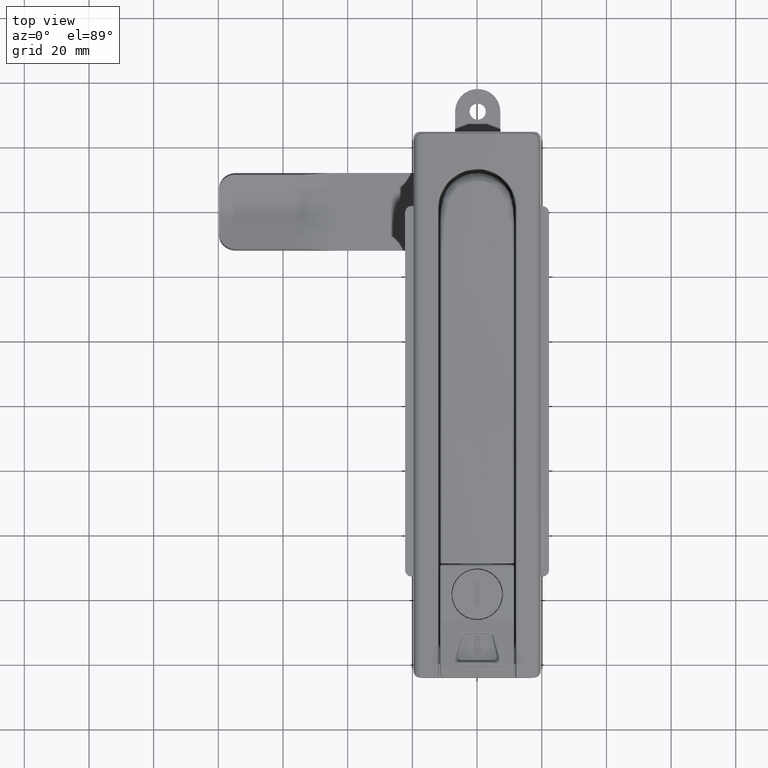
[diagram: clean part render]
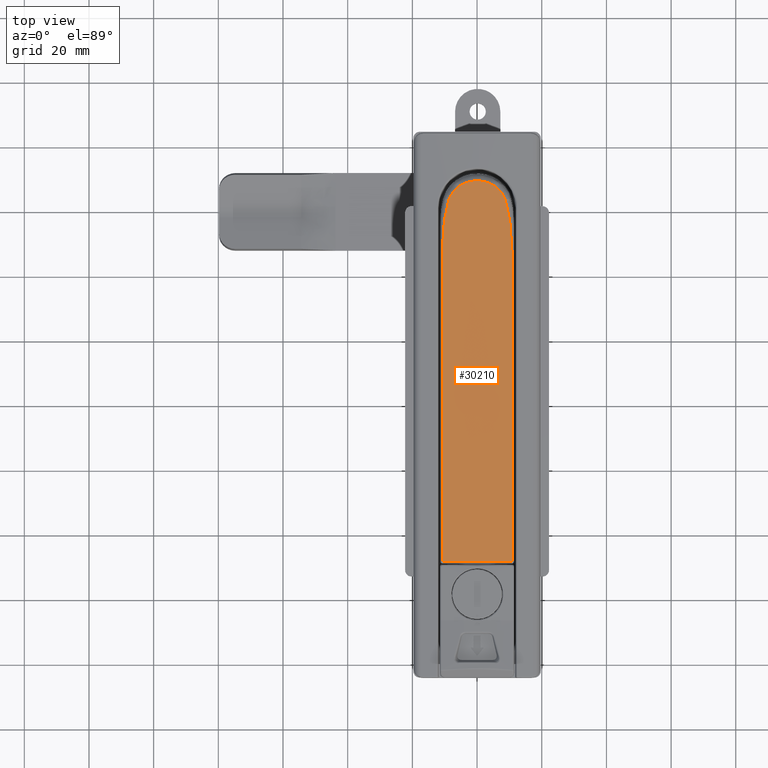
[diagram: same view with one face highlighted and labeled with its STEP entity id]
A machine part, top view. The second image highlights one B-rep face of the part: STEP entity #30210.
In plain terms, the highlighted cylindrical surface (partial cylindrical patch) has radius 135 mm, axis along (-0, -1, 0).
Its self-contained STEP definition (entity closure, byte-faithful):
#2460=B_SPLINE_CURVE_WITH_KNOTS('',3,(#70364,#70365,#70366,#70367,#70368,
#70369,#70370,#70371,#70372,#70373,#70374,#70375,#70376,#70377,#70378,#70379,
#70380,#70381,#70382,#70383,#70384,#70385,#70386,#70387,#70388,#70389,#70390,
#70391,#70392,#70393,#70394,#70395,#70396,#70397,#70398,#70399,#70400,#70401,
#70402,#70403,#70404,#70405,#70406,#70407,#70408,#70409),.UNSPECIFIED.,
 .F.,.F.,(4,2,2,2,2,2,2,2,2,2,2,2,2,2,2,2,2,2,2,2,2,2,4),(0.,0.0794670477758128,
0.124337506997878,0.208967356926244,0.24967738575409,0.33365015805204,0.41682507902602,
0.5,0.554073733065576,0.607621381841759,0.660948832097142,0.714084661877617,
0.742899010685793,0.795658524140719,0.848496563656226,0.866933520496024,
0.899057900391231,0.915918679704495,0.931844284371677,0.943788937098933,
0.948528858773422,0.965434167929157,1.),.UNSPECIFIED.);
#2461=B_SPLINE_CURVE_WITH_KNOTS('',3,(#70411,#70412,#70413,#70414,#70415,
#70416,#70417,#70418,#70419,#70420,#70421,#70422,#70423,#70424,#70425,#70426,
#70427,#70428,#70429,#70430,#70431,#70432,#70433,#70434,#70435,#70436,#70437,
#70438,#70439,#70440,#70441,#70442,#70443,#70444,#70445,#70446,#70447,#70448,
#70449,#70450,#70451,#70452,#70453,#70454,#70455,#70456),.UNSPECIFIED.,
 .F.,.F.,(4,2,2,2,2,2,2,2,2,2,2,2,2,2,2,2,2,2,2,2,2,2,4),(0.,0.0288698119042643,
0.0595070484275719,0.0615314774198271,0.10838350489305,0.123901449784414,
0.214601047893554,0.25008490282086,0.3354521621072,0.4177260810536,0.5,
0.552821544612208,0.604787974550976,0.655868264949775,0.704869810681246,
0.75,0.806741974749445,0.809732580552726,0.851301665456547,0.870906002412791,
0.917474773523618,0.962610068843219,0.999999999999997),.UNSPECIFIED.);
#2462=B_SPLINE_CURVE_WITH_KNOTS('',3,(#70458,#70459,#70460,#70461,#70462,
#70463,#70464,#70465,#70466,#70467,#70468,#70469,#70470,#70471,#70472,#70473,
#70474,#70475,#70476,#70477,#70478,#70479,#70480,#70481,#70482,#70483,#70484,
#70485,#70486,#70487,#70488,#70489,#70490,#70491,#70492,#70493,#70494,#70495,
#70496,#70497,#70498,#70499,#70500,#70501,#70502,#70503,#70504,#70505,#70506,
#70507,#70508,#70509,#70510,#70511,#70512,#70513,#70514,#70515,#70516,#70517,
#70518,#70519,#70520,#70521,#70522,#70523,#70524,#70525,#70526,#70527,#70528,
#70529,#70530,#70531),.UNSPECIFIED.,.F.,.F.,(4,2,2,2,2,2,2,2,2,2,2,2,2,
2,2,2,2,2,2,2,2,2,2,2,2,2,2,2,2,2,2,2,2,2,2,2,4),(0.,0.00263571209066794,
0.00543301713932995,0.00615894069718594,0.00858458813709172,0.0111539515478186,
0.013141776808428,0.0156249999999999,0.0208699680766893,0.0234374999999998,
0.0292968749999997,0.0305423379409803,0.0312499999999996,0.0380874327237521,
0.0452204865772513,0.0468749999999993,0.0545105366817038,0.0585937499999991,
0.0603142663355956,0.0619198009169783,0.0624999999999991,0.0708090472847054,
0.078124999999999,0.0859374999999989,0.0883873902625466,0.0908226008862248,
0.0933661572808643,0.0937499999999989,0.0957031249999989,0.0977089364757748,
0.0999986284931972,0.101562499999999,0.109374999999999,0.124999999999999,
0.249999999999999,0.499999999999999,1.),.UNSPECIFIED.);
#2463=B_SPLINE_CURVE_WITH_KNOTS('',3,(#70535,#70536,#70537,#70538,#70539,
#70540,#70541,#70542,#70543,#70544,#70545,#70546,#70547,#70548,#70549,#70550,
#70551,#70552,#70553,#70554,#70555,#70556,#70557,#70558,#70559,#70560,#70561,
#70562,#70563,#70564,#70565,#70566,#70567,#70568,#70569,#70570,#70571,#70572,
#70573,#70574,#70575,#70576,#70577,#70578,#70579,#70580,#70581,#70582,#70583,
#70584,#70585,#70586,#70587,#70588,#70589,#70590),.UNSPECIFIED.,.F.,.F.,
(4,2,2,2,2,2,2,2,2,2,2,2,2,2,2,2,2,2,2,2,2,2,2,2,2,2,2,4),(0.,0.890625000000001,
0.898292881535682,0.901749179759901,0.904813415789581,0.906250000000001,
0.914989498762561,0.921875000000001,0.930204271891951,0.933593750000001,
0.93515670162165,0.936832589379554,0.937500000000001,0.945312500000001,
0.953125000000001,0.960142785525103,0.966796875000001,0.967880200079096,
0.968750000000001,0.973991755500175,0.978828365200004,0.983194383446679,
0.98717515098635,0.990381363239762,0.993388397441938,0.996303188199453,
0.999100911591475,1.),.UNSPECIFIED.);
#2464=B_SPLINE_CURVE_WITH_KNOTS('',3,(#70592,#70593,#70594,#70595,#70596,
#70597,#70598,#70599,#70600,#70601,#70602,#70603,#70604,#70605,#70606,#70607,
#70608,#70609,#70610,#70611,#70612,#70613,#70614,#70615,#70616,#70617,#70618,
#70619,#70620,#70621,#70622),.UNSPECIFIED.,.F.,.F.,(4,3,3,3,3,3,3,3,3,3,
4),(0.,0.107734700056607,0.141528715173318,0.278271703776808,0.537223825986683,
0.777351176680833,0.890759079428263,0.945887036460988,0.973068700845226,
0.989059877348723,1.),.UNSPECIFIED.);
#2465=B_SPLINE_CURVE_WITH_KNOTS('',3,(#70624,#70625,#70626,#70627,#70628,
#70629,#70630,#70631,#70632,#70633,#70634,#70635,#70636,#70637,#70638,#70639,
#70640,#70641,#70642,#70643,#70644,#70645,#70646,#70647,#70648,#70649,#70650,
#70651,#70652,#70653,#70654,#70655,#70656,#70657,#70658,#70659,#70660,#70661,
#70662,#70663),.UNSPECIFIED.,.F.,.F.,(4,2,2,2,2,2,2,2,2,2,2,2,2,2,2,2,2,
2,2,4),(0.,0.0151711104225679,0.0305293993237928,0.0343198211761847,0.061678326381175,
0.0677014490277877,0.104184156489245,0.13229401847233,0.185456548794355,
0.238318991460715,0.256041604113548,0.308708479922393,0.361651681672873,
0.414825019774472,0.468505785224694,0.5,0.660754413349573,0.750450489933526,
0.921630445433986,0.99999999999998),.UNSPECIFIED.);
#2466=B_SPLINE_CURVE_WITH_KNOTS('',3,(#70664,#70665,#70666,#70667,#70668,
#70669,#70670,#70671,#70672,#70673,#70674,#70675,#70676,#70677,#70678,#70679,
#70680,#70681,#70682,#70683,#70684,#70685,#70686,#70687,#70688,#70689,#70690,
#70691,#70692,#70693,#70694,#70695,#70696,#70697,#70698,#70699,#70700,#70701,
#70702),.UNSPECIFIED.,.F.,.F.,(4,2,2,2,2,2,2,2,2,2,3,2,2,2,2,2,2,2,4),(0.,
0.0549916433639615,0.113717229159577,0.125018752336344,0.187790480548595,
0.250562208760846,0.313191602366435,0.375820995972023,0.437910497986012,
0.496790425338958,0.500003757600719,0.564604561669501,0.624070347801501,
0.690583092262706,0.749130266478079,0.811861107240956,0.874630924639027,
0.940273216447539,1.),.UNSPECIFIED.);
#4647=FACE_OUTER_BOUND('',#6509,.T.);
#6509=EDGE_LOOP('',(#26539,#26540,#26541,#26542,#26543,#26544,#26545,#26546));
#11014=CIRCLE('',#32272,135.);
#13801=VERTEX_POINT('',#70362);
#13802=VERTEX_POINT('',#70363);
#13803=VERTEX_POINT('',#70410);
#13804=VERTEX_POINT('',#70457);
#13805=VERTEX_POINT('',#70532);
#13806=VERTEX_POINT('',#70534);
#13807=VERTEX_POINT('',#70591);
#13808=VERTEX_POINT('',#70623);
#18088=EDGE_CURVE('',#13801,#13802,#2460,.T.);
#18089=EDGE_CURVE('',#13802,#13803,#2461,.T.);
#18090=EDGE_CURVE('',#13803,#13804,#2462,.T.);
#18091=EDGE_CURVE('',#13804,#13805,#11014,.T.);
#18092=EDGE_CURVE('',#13805,#13806,#2463,.T.);
#18093=EDGE_CURVE('',#13806,#13807,#2464,.T.);
#18094=EDGE_CURVE('',#13807,#13808,#2465,.T.);
#18095=EDGE_CURVE('',#13808,#13801,#2466,.T.);
#26539=ORIENTED_EDGE('',*,*,#18088,.T.);
#26540=ORIENTED_EDGE('',*,*,#18089,.T.);
#26541=ORIENTED_EDGE('',*,*,#18090,.T.);
#26542=ORIENTED_EDGE('',*,*,#18091,.T.);
#26543=ORIENTED_EDGE('',*,*,#18092,.T.);
#26544=ORIENTED_EDGE('',*,*,#18093,.T.);
#26545=ORIENTED_EDGE('',*,*,#18094,.T.);
#26546=ORIENTED_EDGE('',*,*,#18095,.T.);
#28656=CYLINDRICAL_SURFACE('',#32271,135.);
#30210=ADVANCED_FACE('',(#4647),#28656,.T.);
#32271=AXIS2_PLACEMENT_3D('',#70361,#37838,#37839);
#32272=AXIS2_PLACEMENT_3D('',#70533,#37840,#37841);
#37838=DIRECTION('center_axis',(-1.,0.,0.));
#37839=DIRECTION('ref_axis',(0.,0.,-1.));
#37840=DIRECTION('center_axis',(1.,6.11356291093148E-15,0.));
#37841=DIRECTION('ref_axis',(-6.11356291093148E-15,1.,0.));
#70361=CARTESIAN_POINT('Origin',(-125.05,-2.09471329171151E-13,97.3499999999999));
#70362=CARTESIAN_POINT('',(6.69856548874975,-5.50143926008378,-37.5378577414129));
#70363=CARTESIAN_POINT('',(2.41805290974242,-8.7308420430472,-37.3673797147918));
#70364=CARTESIAN_POINT('Ctrl Pts',(6.69856548874975,-5.50143926008384,-37.5378577414129));
#70365=CARTESIAN_POINT('Ctrl Pts',(6.61789930989103,-5.62246960759468,-37.5329214846096));
#70366=CARTESIAN_POINT('Ctrl Pts',(6.53501673223253,-5.74000448724807,-37.5279661229321));
#70367=CARTESIAN_POINT('Ctrl Pts',(6.40123543067602,-5.91958696907672,-37.5201701256429));
#70368=CARTESIAN_POINT('Ctrl Pts',(6.35212134108655,-5.98351323242902,-37.5173480424877));
#70369=CARTESIAN_POINT('Ctrl Pts',(6.20774534855167,-6.16583103487671,-37.5091737780959));
#70370=CARTESIAN_POINT('Ctrl Pts',(6.11021062731028,-6.28217690447342,-37.5037992008508));
#70371=CARTESIAN_POINT('Ctrl Pts',(5.96099196141587,-6.45039424457021,-37.4958208362402));
#70372=CARTESIAN_POINT('Ctrl Pts',(5.91178084858998,-6.50439052711595,-37.4932265916213));
#70373=CARTESIAN_POINT('Ctrl Pts',(5.75875632430423,-6.66780914651807,-37.4852790009383));
#70374=CARTESIAN_POINT('Ctrl Pts',(5.65250084341831,-6.77513366659197,-37.4799239680321));
#70375=CARTESIAN_POINT('Ctrl Pts',(5.43459348236815,-6.98322890640918,-37.4693051133662));
#70376=CARTESIAN_POINT('Ctrl Pts',(5.32300213710197,-7.08405256179866,-37.464040848346));
#70377=CARTESIAN_POINT('Ctrl Pts',(5.09338849533221,-7.28008645929745,-37.4535973948397));
#70378=CARTESIAN_POINT('Ctrl Pts',(4.97536594007929,-7.37529713552064,-37.4484181444788));
#70379=CARTESIAN_POINT('Ctrl Pts',(4.77516204348137,-7.52757355101409,-37.4399819971469));
#70380=CARTESIAN_POINT('Ctrl Pts',(4.69427268169904,-7.58679005360024,-37.4366611871282));
#70381=CARTESIAN_POINT('Ctrl Pts',(4.52983524777161,-7.70243158405684,-37.4301022526306));
#70382=CARTESIAN_POINT('Ctrl Pts',(4.44632091874896,-7.7588779135196,-37.4268636775931));
#70383=CARTESIAN_POINT('Ctrl Pts',(4.27686356700365,-7.86878271351581,-37.4204916919949));
#70384=CARTESIAN_POINT('Ctrl Pts',(4.19093217289502,-7.92225227610148,-37.4173579429475));
#70385=CARTESIAN_POINT('Ctrl Pts',(4.01730149919596,-8.02577542063577,-37.4112322245583));
#70386=CARTESIAN_POINT('Ctrl Pts',(3.92960993928782,-8.07584039451658,-37.4082398232511));
#70387=CARTESIAN_POINT('Ctrl Pts',(3.79333108031417,-8.15027402009885,-37.4037522065221));
#70388=CARTESIAN_POINT('Ctrl Pts',(3.74521761327799,-8.17591611015769,-37.4021985995397));
#70389=CARTESIAN_POINT('Ctrl Pts',(3.60862291187076,-8.246936466688,-37.397876260201));
#70390=CARTESIAN_POINT('Ctrl Pts',(3.51979449394583,-8.29102784180562,-37.3951693634096));
#70391=CARTESIAN_POINT('Ctrl Pts',(3.34165879488281,-8.37538943192847,-37.3899520442188));
#70392=CARTESIAN_POINT('Ctrl Pts',(3.25235093007065,-8.41565390358452,-37.3874419378092));
#70393=CARTESIAN_POINT('Ctrl Pts',(3.13210577700607,-8.46726422754331,-37.384203597441));
#70394=CARTESIAN_POINT('Ctrl Pts',(3.10102212937242,-8.48037079360256,-37.3833792246078));
#70395=CARTESIAN_POINT('Ctrl Pts',(3.01587715924864,-8.51564263392213,-37.3811557685881));
#70396=CARTESIAN_POINT('Ctrl Pts',(2.96185691813822,-8.53731763900264,-37.3797838080268));
#70397=CARTESIAN_POINT('Ctrl Pts',(2.88001251522218,-8.56914557780103,-37.3777620409667));
#70398=CARTESIAN_POINT('Ctrl Pts',(2.85157443176623,-8.57999486574756,-37.3770714678924));
#70399=CARTESIAN_POINT('Ctrl Pts',(2.79718829106393,-8.60044157845451,-37.3757677365663));
#70400=CARTESIAN_POINT('Ctrl Pts',(2.7711894242218,-8.61007512482672,-37.3751524048976));
#70401=CARTESIAN_POINT('Ctrl Pts',(2.72743812932562,-8.62609864742971,-37.3741272730261));
#70402=CARTESIAN_POINT('Ctrl Pts',(2.70947462426466,-8.63263476267684,-37.3737086159024));
#70403=CARTESIAN_POINT('Ctrl Pts',(2.6841872751264,-8.64171803558726,-37.3731261408704));
#70404=CARTESIAN_POINT('Ctrl Pts',(2.67698189538042,-8.64429308521554,-37.3729609375473));
#70405=CARTESIAN_POINT('Ctrl Pts',(2.64372511011722,-8.65610937399327,-37.3722025355353));
#70406=CARTESIAN_POINT('Ctrl Pts',(2.61719491910181,-8.6653546640146,-37.3716081931818));
#70407=CARTESIAN_POINT('Ctrl Pts',(2.53483610373103,-8.69346754471637,-37.3697980252314));
#70408=CARTESIAN_POINT('Ctrl Pts',(2.47734386540463,-8.71227088941918,-37.3685832848821));
#70409=CARTESIAN_POINT('Ctrl Pts',(2.41805290974244,-8.73084204304726,-37.3673797147917));
#70410=CARTESIAN_POINT('',(-3.89999999999961,-10.0811556679295,-37.2730674899328));
#70411=CARTESIAN_POINT('Ctrl Pts',(2.41805290974241,-8.73084204304726,-37.3673797147918));
#70412=CARTESIAN_POINT('Ctrl Pts',(2.35942263168716,-8.74920625680842,-37.3661895561802));
#70413=CARTESIAN_POINT('Ctrl Pts',(2.29943744423481,-8.76777253748438,-37.364982495938));
#70414=CARTESIAN_POINT('Ctrl Pts',(2.17503253073018,-8.80592973953419,-37.3624938118223));
#70415=CARTESIAN_POINT('Ctrl Pts',(2.11056583065667,-8.82551389259091,-37.3612121389635));
#70416=CARTESIAN_POINT('Ctrl Pts',(2.04259047622227,-8.8460153903246,-37.3598660578944));
#70417=CARTESIAN_POINT('Ctrl Pts',(2.03838029940337,-8.8472845717675,-37.359782708309));
#70418=CARTESIAN_POINT('Ctrl Pts',(1.93681408423726,-8.8778877045023,-37.3577725084754));
#70419=CARTESIAN_POINT('Ctrl Pts',(1.8407917029532,-8.90648468801419,-37.3558845250154));
#70420=CARTESIAN_POINT('Ctrl Pts',(1.71334392630447,-8.9439407796189,-37.3534001447672));
#70421=CARTESIAN_POINT('Ctrl Pts',(1.68166592297733,-8.95320941466852,-37.352784405912));
#70422=CARTESIAN_POINT('Ctrl Pts',(1.46479784274147,-9.01637176500378,-37.3485818856795));
#70423=CARTESIAN_POINT('Ctrl Pts',(1.28042283657359,-9.068650602991,-37.3450710836051));
#70424=CARTESIAN_POINT('Ctrl Pts',(1.0235477668292,-9.13939979609336,-37.3402809003068));
#70425=CARTESIAN_POINT('Ctrl Pts',(0.951271700798224,-9.15907644665101,
-37.3389442362502));
#70426=CARTESIAN_POINT('Ctrl Pts',(0.7047536872868,-9.2253866076589,-37.3344254030624));
#70427=CARTESIAN_POINT('Ctrl Pts',(0.5300712244272,-9.27101725585835,-37.3312913162424));
#70428=CARTESIAN_POINT('Ctrl Pts',(0.184429855329022,-9.35844526937982,
-37.325244020541));
#70429=CARTESIAN_POINT('Ctrl Pts',(0.013565353056979,-9.40032183332048,
-37.3223268889815));
#70430=CARTESIAN_POINT('Ctrl Pts',(-0.332061681969102,-9.48210311929259,
-37.3165934844191));
#70431=CARTESIAN_POINT('Ctrl Pts',(-0.506824117973517,-9.52200839058615,
-37.3137771567035));
#70432=CARTESIAN_POINT('Ctrl Pts',(-0.798193679972191,-9.58590529922355,
-37.309240480953));
#70433=CARTESIAN_POINT('Ctrl Pts',(-0.909803644728397,-9.60973582041879,
-37.3075415941871));
#70434=CARTESIAN_POINT('Ctrl Pts',(-1.12902648806489,-9.65532146913883,
-37.3042805892612));
#70435=CARTESIAN_POINT('Ctrl Pts',(-1.23667475204711,-9.6771039005566,-37.3027166891183));
#70436=CARTESIAN_POINT('Ctrl Pts',(-1.45033116531175,-9.71913730203569,
-37.2996892179629));
#70437=CARTESIAN_POINT('Ctrl Pts',(-1.55633587754004,-9.73940813981786,
-37.2982243724149));
#70438=CARTESIAN_POINT('Ctrl Pts',(-1.76642158403968,-9.77837221968372,
-37.2954002281255));
#70439=CARTESIAN_POINT('Ctrl Pts',(-1.87040523901779,-9.79709611923112,
-37.2940390481521));
#70440=CARTESIAN_POINT('Ctrl Pts',(-2.07425232966653,-9.83260874249981,
-37.2914501434973));
#70441=CARTESIAN_POINT('Ctrl Pts',(-2.17379226457318,-9.84943332103424,
-37.2902203759532));
#70442=CARTESIAN_POINT('Ctrl Pts',(-2.40437634194341,-9.88707924040202,
-37.2874617486971));
#70443=CARTESIAN_POINT('Ctrl Pts',(-2.53203396024894,-9.90700951260464,
-37.2859963736259));
#70444=CARTESIAN_POINT('Ctrl Pts',(-2.66478700881781,-9.9268460098351,-37.2845339401773));
#70445=CARTESIAN_POINT('Ctrl Pts',(-2.67142920190575,-9.92783614151738,
-37.2844609322847));
#70446=CARTESIAN_POINT('Ctrl Pts',(-2.77033146692052,-9.94254400799588,
-37.2833762776973));
#70447=CARTESIAN_POINT('Ctrl Pts',(-2.86161414508132,-9.95567936742648,
-37.2824054863809));
#70448=CARTESIAN_POINT('Ctrl Pts',(-2.9949630453102,-9.97416847139452,-37.281036535433));
#70449=CARTESIAN_POINT('Ctrl Pts',(-3.03754822614999,-9.97996665669403,
-37.2806068391965));
#70450=CARTESIAN_POINT('Ctrl Pts',(-3.18088466900316,-9.99911519003049,
-37.2791865756006));
#70451=CARTESIAN_POINT('Ctrl Pts',(-3.28092578732138,-10.0118792665438,
-37.2782378231585));
#70452=CARTESIAN_POINT('Ctrl Pts',(-3.47634535812021,-10.0355928411261,
-37.2764721862125));
#70453=CARTESIAN_POINT('Ctrl Pts',(-3.57177268784729,-10.0465861513846,
-37.2756521385513));
#70454=CARTESIAN_POINT('Ctrl Pts',(-3.74482921960936,-10.0654490942263,
-37.2742430172893));
#70455=CARTESIAN_POINT('Ctrl Pts',(-3.82270175055888,-10.0735312301013,
-37.2736384407071));
#70456=CARTESIAN_POINT('Ctrl Pts',(-3.89999999999961,-10.0811556679295,
-37.2730674899328));
#70457=CARTESIAN_POINT('',(-109.45,-10.7979910714287,-37.2174677952341));
#70458=CARTESIAN_POINT('Ctrl Pts',(-3.89999999999961,-10.0811556679295,
-37.2730674899328));
#70459=CARTESIAN_POINT('Ctrl Pts',(-4.02221856212834,-10.0932108932113,
-37.2721647426924));
#70460=CARTESIAN_POINT('Ctrl Pts',(-4.14168146557357,-10.1050009824868,
-37.2712802205346));
#70461=CARTESIAN_POINT('Ctrl Pts',(-4.38280673677744,-10.128758758738,-37.2694948577121));
#70462=CARTESIAN_POINT('Ctrl Pts',(-4.50415462746727,-10.1406930210843,
-37.2685963412158));
#70463=CARTESIAN_POINT('Ctrl Pts',(-4.65379800557405,-10.1553533299837,
-37.2674907195287));
#70464=CARTESIAN_POINT('Ctrl Pts',(-4.68445929763816,-10.1583541061267,
-37.2672643107169));
#70465=CARTESIAN_POINT('Ctrl Pts',(-4.81684886876738,-10.1712961740879,
-37.2662874004316));
#70466=CARTESIAN_POINT('Ctrl Pts',(-4.91669477742223,-10.181030171606,-37.2655515297687));
#70467=CARTESIAN_POINT('Ctrl Pts',(-5.1178526606248,-10.2006045825962,-37.2640697139682));
#70468=CARTESIAN_POINT('Ctrl Pts',(-5.21890118744432,-10.2104171416701,
-37.2633257544232));
#70469=CARTESIAN_POINT('Ctrl Pts',(-5.39369973867992,-10.2273695812746,
-37.2620387060534));
#70470=CARTESIAN_POINT('Ctrl Pts',(-5.4684532240266,-10.2346117781809,-37.2614882587609));
#70471=CARTESIAN_POINT('Ctrl Pts',(-5.63320474472962,-10.2505623945145,
-37.2602746771047));
#70472=CARTESIAN_POINT('Ctrl Pts',(-5.72248709745006,-10.2591863549421,
-37.2596176402868));
#70473=CARTESIAN_POINT('Ctrl Pts',(-5.99381662549777,-10.285310655151,-37.2576249030613));
#70474=CARTESIAN_POINT('Ctrl Pts',(-6.16804494218835,-10.3020120844184,
-37.2563474131176));
#70475=CARTESIAN_POINT('Ctrl Pts',(-6.41280488684679,-10.3253087557872,
-37.2545616891456));
#70476=CARTESIAN_POINT('Ctrl Pts',(-6.49086899308544,-10.3327113156044,
-37.2539936222614));
#70477=CARTESIAN_POINT('Ctrl Pts',(-6.73928137538121,-10.3561704271553,
-37.2521915902674));
#70478=CARTESIAN_POINT('Ctrl Pts',(-6.89963494124929,-10.371149467501,-37.251038028126));
#70479=CARTESIAN_POINT('Ctrl Pts',(-7.07907146083218,-10.3877337859956,
-37.249758519358));
#70480=CARTESIAN_POINT('Ctrl Pts',(-7.09714549274903,-10.3894004897836,
-37.2496298786409));
#70481=CARTESIAN_POINT('Ctrl Pts',(-7.14297018538134,-10.3936183887415,
-37.2493042284746));
#70482=CARTESIAN_POINT('Ctrl Pts',(-7.16317237027843,-10.395476557461,-37.2491607474644));
#70483=CARTESIAN_POINT('Ctrl Pts',(-7.4649280482962,-10.4231530755045,-37.2470226742058));
#70484=CARTESIAN_POINT('Ctrl Pts',(-7.73118907294884,-10.4470088264149,
-37.2451723674646));
#70485=CARTESIAN_POINT('Ctrl Pts',(-8.26052675273885,-10.4930894491792,
-37.2415873907629));
#70486=CARTESIAN_POINT('Ctrl Pts',(-8.52296800107006,-10.5151994132068,
-37.2398611630674));
#70487=CARTESIAN_POINT('Ctrl Pts',(-8.83663873601109,-10.5406512617842,
-37.237868732037));
#70488=CARTESIAN_POINT('Ctrl Pts',(-8.89527515576178,-10.5453655095516,
-37.2374994403683));
#70489=CARTESIAN_POINT('Ctrl Pts',(-9.22215234343981,-10.5713989748959,
-37.2354588150544));
#70490=CARTESIAN_POINT('Ctrl Pts',(-9.48184444315889,-10.5911340320379,
-37.2339069650278));
#70491=CARTESIAN_POINT('Ctrl Pts',(-9.86664406860098,-10.6189236507134,
-37.2317166537751));
#70492=CARTESIAN_POINT('Ctrl Pts',(-9.99815629186138,-10.6281418217029,
-37.2309890553822));
#70493=CARTESIAN_POINT('Ctrl Pts',(-10.1814369643639,-10.6405995083382,
-37.2300045598931));
#70494=CARTESIAN_POINT('Ctrl Pts',(-10.2296775876642,-10.6438333478362,
-37.2297488550388));
#70495=CARTESIAN_POINT('Ctrl Pts',(-10.3255567350485,-10.650184929407,-37.2292464016725));
#70496=CARTESIAN_POINT('Ctrl Pts',(-10.37302004399,-10.6532960031458,-37.2290001935896));
#70497=CARTESIAN_POINT('Ctrl Pts',(-10.4474839557378,-10.6581002259367,
-37.2286197755769));
#70498=CARTESIAN_POINT('Ctrl Pts',(-10.4681950041745,-10.659429628536,-37.2285144886238));
#70499=CARTESIAN_POINT('Ctrl Pts',(-10.8043606331598,-10.680869158333,-37.2268161242902));
#70500=CARTESIAN_POINT('Ctrl Pts',(-11.112771324258,-10.6987640428914,-37.2253943601931));
#70501=CARTESIAN_POINT('Ctrl Pts',(-11.6817994196239,-10.7282536155069,
-37.2230468988421));
#70502=CARTESIAN_POINT('Ctrl Pts',(-11.9437234300545,-10.7403466632684,
-37.2220821349637));
#70503=CARTESIAN_POINT('Ctrl Pts',(-12.4760290713795,-10.7617812219905,
-37.2203697952551));
#70504=CARTESIAN_POINT('Ctrl Pts',(-12.7457781601385,-10.7708793720115,
-37.219641477959));
#70505=CARTESIAN_POINT('Ctrl Pts',(-13.0933657043432,-10.7802661946362,
-37.218889369544));
#70506=CARTESIAN_POINT('Ctrl Pts',(-13.1789421977655,-10.7823950536609,
-37.2187187280553));
#70507=CARTESIAN_POINT('Ctrl Pts',(-13.3489413350404,-10.7862307333597,
-37.2184111891746));
#70508=CARTESIAN_POINT('Ctrl Pts',(-13.4333678202104,-10.7879398663305,
-37.2182741085501));
#70509=CARTESIAN_POINT('Ctrl Pts',(-13.5994640973542,-10.7909375411606,
-37.2180336536321));
#70510=CARTESIAN_POINT('Ctrl Pts',(-13.6808441199253,-10.7922041343573,
-37.2179320401037));
#70511=CARTESIAN_POINT('Ctrl Pts',(-13.7667440020443,-10.7933708065266,
-37.217838456353));
#70512=CARTESIAN_POINT('Ctrl Pts',(-13.7778536889585,-10.7935181185363,
-37.217826640118));
#70513=CARTESIAN_POINT('Ctrl Pts',(-13.8444899616565,-10.7943813675873,
-37.2177573990685));
#70514=CARTESIAN_POINT('Ctrl Pts',(-13.9066967181288,-10.7950683146271,
-37.2177022960996));
#70515=CARTESIAN_POINT('Ctrl Pts',(-14.041042348668,-10.7962486250983,-37.2176076117111));
#70516=CARTESIAN_POINT('Ctrl Pts',(-14.1134038799494,-10.7967361533532,
-37.2175684982249));
#70517=CARTESIAN_POINT('Ctrl Pts',(-14.2718982822977,-10.7975060606673,
-37.2175067238998));
#70518=CARTESIAN_POINT('Ctrl Pts',(-14.3585307625464,-10.7977505660845,
-37.2174871009219));
#70519=CARTESIAN_POINT('Ctrl Pts',(-14.5013236063604,-10.7979604632236,
-37.2174702531798));
#70520=CARTESIAN_POINT('Ctrl Pts',(-14.5584381462521,-10.7979914791867,
-37.2174677625146));
#70521=CARTESIAN_POINT('Ctrl Pts',(-14.8883526155254,-10.7979920910476,
-37.217467713417));
#70522=CARTESIAN_POINT('Ctrl Pts',(-15.163241125364,-10.7979920910476,-37.2174677134169));
#70523=CARTESIAN_POINT('Ctrl Pts',(-15.9879066548797,-10.7979910714286,
-37.2174677952345));
#70524=CARTESIAN_POINT('Ctrl Pts',(-16.5376836745568,-10.7979910714278,
-37.2174677952369));
#70525=CARTESIAN_POINT('Ctrl Pts',(-21.4856768516515,-10.7980073853427,
-37.2174664861227));
#70526=CARTESIAN_POINT('Ctrl Pts',(-25.8838930090689,-10.7980073853896,
-37.2174664859668));
#70527=CARTESIAN_POINT('Ctrl Pts',(-39.0785414813211,-10.797991071398,-37.2174677953361));
#70528=CARTESIAN_POINT('Ctrl Pts',(-47.874973796156,-10.7979910713058,-37.2174677956422));
#70529=CARTESIAN_POINT('Ctrl Pts',(-74.2642707406604,-10.7980563276414,
-37.2174625569406));
#70530=CARTESIAN_POINT('Ctrl Pts',(-91.8571353703301,-10.798056327027,-37.2174625589806));
#70531=CARTESIAN_POINT('Ctrl Pts',(-109.45,-10.7979910714287,-37.2174677952341));
#70532=CARTESIAN_POINT('',(-109.45,10.7979910714284,-37.2174677952341));
#70533=CARTESIAN_POINT('Origin',(-109.45,-2.09471329171151E-13,97.3499999999999));
#70534=CARTESIAN_POINT('',(-3.89999999999979,10.0811506488633,-37.273067865782));
#70535=CARTESIAN_POINT('Ctrl Pts',(-109.45,10.7979910714284,-37.2174677952341));
#70536=CARTESIAN_POINT('Ctrl Pts',(-78.1127409702412,10.7979910714284,-37.2174677952341));
#70537=CARTESIAN_POINT('Ctrl Pts',(-46.7754819404827,10.7979910714284,-37.2174677952341));
#70538=CARTESIAN_POINT('Ctrl Pts',(-15.1684231747033,10.7979910714284,-37.2174677952341));
#70539=CARTESIAN_POINT('Ctrl Pts',(-14.8886314007631,10.7979910714284,-37.2174677952342));
#70540=CARTESIAN_POINT('Ctrl Pts',(-14.4895689315927,10.7979916514818,-37.2174677486891));
#70541=CARTESIAN_POINT('Ctrl Pts',(-14.3665383627551,10.7978310546879,-37.2174806443035));
#70542=CARTESIAN_POINT('Ctrl Pts',(-14.1387833568632,10.796929305272,-37.2175530021677));
#70543=CARTESIAN_POINT('Ctrl Pts',(-14.0335654511772,10.796255585096,-37.2176070553788));
#70544=CARTESIAN_POINT('Ctrl Pts',(-13.8830600671705,10.7948011536253,-37.2177237260379));
#70545=CARTESIAN_POINT('Ctrl Pts',(-13.8356260536572,10.7942680541805,-37.2177664878945));
#70546=CARTESIAN_POINT('Ctrl Pts',(-13.5045946660428,10.7899840630805,-37.2181101061341));
#70547=CARTESIAN_POINT('Ctrl Pts',(-13.2138058201137,10.7839250681964,-37.2185963749461));
#70548=CARTESIAN_POINT('Ctrl Pts',(-12.6823128273594,10.7687135452906,-37.2198148255354));
#70549=CARTESIAN_POINT('Ctrl Pts',(-12.4440701954456,10.7604907472845,-37.2204728853161));
#70550=CARTESIAN_POINT('Ctrl Pts',(-11.9087278386215,10.7389387778294,-37.2221946090318));
#70551=CARTESIAN_POINT('Ctrl Pts',(-11.6097615744121,10.7248968093749,-37.2233146888127));
#70552=CARTESIAN_POINT('Ctrl Pts',(-11.1808413100942,10.7020144552187,-37.2251352049577));
#70553=CARTESIAN_POINT('Ctrl Pts',(-11.0558061576323,10.6950286946123,-37.2256905053404));
#70554=CARTESIAN_POINT('Ctrl Pts',(-10.8716886181372,10.6842906499352,-37.2265431823585));
#70555=CARTESIAN_POINT('Ctrl Pts',(-10.8086955371769,10.6805473619303,-37.2268402943942));
#70556=CARTESIAN_POINT('Ctrl Pts',(-10.6796701845274,10.6727227047526,-37.2274610176768));
#70557=CARTESIAN_POINT('Ctrl Pts',(-10.6137472091048,10.6686363686585,-37.2277849957631));
#70558=CARTESIAN_POINT('Ctrl Pts',(-10.5324264198775,10.6635143820492,-37.2281908909231));
#70559=CARTESIAN_POINT('Ctrl Pts',(-10.5104962021587,10.6621233344948,-37.228301102666));
#70560=CARTESIAN_POINT('Ctrl Pts',(-10.2530591663081,10.6457071574607,-37.2296015349));
#70561=CARTESIAN_POINT('Ctrl Pts',(-10.0064555003036,10.6289685416071,-37.2309247568158));
#70562=CARTESIAN_POINT('Ctrl Pts',(-9.49439178806193,10.5920811600514,-37.2338324849413));
#70563=CARTESIAN_POINT('Ctrl Pts',(-9.22893174182141,10.5719315213377,-37.235417065561));
#70564=CARTESIAN_POINT('Ctrl Pts',(-8.70711784841366,10.5303742390088,-37.2386745318514));
#70565=CARTESIAN_POINT('Ctrl Pts',(-8.4525845772692,10.5093026625006,-37.2403220660417));
#70566=CARTESIAN_POINT('Ctrl Pts',(-7.94188823345087,10.4655479344506,-37.2437316763047));
#70567=CARTESIAN_POINT('Ctrl Pts',(-7.68649325600173,10.443004812663,-37.2454833976424));
#70568=CARTESIAN_POINT('Ctrl Pts',(-7.38156543502223,10.4154093542185,-37.2476197735976));
#70569=CARTESIAN_POINT('Ctrl Pts',(-7.32823444081547,10.4105636664461,-37.2479946922637));
#70570=CARTESIAN_POINT('Ctrl Pts',(-7.24427459033817,10.4029015923481,-37.248587100592));
#70571=CARTESIAN_POINT('Ctrl Pts',(-7.21124296424245,10.3998754121574,-37.2488209260567));
#70572=CARTESIAN_POINT('Ctrl Pts',(-7.07305373722292,10.3872013057461,-37.2498000292087));
#70573=CARTESIAN_POINT('Ctrl Pts',(-6.94420004446761,10.3752733257756,-37.2507201582568));
#70574=CARTESIAN_POINT('Ctrl Pts',(-6.67586832316417,10.3501767836151,-37.2526521426937));
#70575=CARTESIAN_POINT('Ctrl Pts',(-6.53798186358894,10.337175022332,-37.2536514377025));
#70576=CARTESIAN_POINT('Ctrl Pts',(-6.2576488625135,10.3105323380806,-37.2556947267845));
#70577=CARTESIAN_POINT('Ctrl Pts',(-6.11695156235275,10.2970765214813,-37.2567249235579));
#70578=CARTESIAN_POINT('Ctrl Pts',(-5.83271068303192,10.2697547403623,-37.2588121107619));
#70579=CARTESIAN_POINT('Ctrl Pts',(-5.6905138188794,10.2560296416798,-37.2598587222267));
#70580=CARTESIAN_POINT('Ctrl Pts',(-5.42135294319419,10.2299898771621,-37.2618399058646));
#70581=CARTESIAN_POINT('Ctrl Pts',(-5.29696942866577,10.2179215440786,-37.2627565613397));
#70582=CARTESIAN_POINT('Ctrl Pts',(-5.04770550784434,10.1936693134502,-37.2645951307705));
#70583=CARTESIAN_POINT('Ctrl Pts',(-4.92333590955721,10.1815391517831,-37.2655131815919));
#70584=CARTESIAN_POINT('Ctrl Pts',(-4.67125432135109,10.1568980508984,-37.2673745750231));
#70585=CARTESIAN_POINT('Ctrl Pts',(-4.54376160990508,10.1444101629054,-37.268316281141));
#70586=CARTESIAN_POINT('Ctrl Pts',(-4.28747288737298,10.1192633831711,-37.2702088988528));
#70587=CARTESIAN_POINT('Ctrl Pts',(-4.15893471914545,10.1066314776049,-37.2711579235272));
#70588=CARTESIAN_POINT('Ctrl Pts',(-3.98532244473335,10.0895498600534,-37.2724386940774));
#70589=CARTESIAN_POINT('Ctrl Pts',(-3.9428048304347,10.0853650525854,-37.2727522732206));
#70590=CARTESIAN_POINT('Ctrl Pts',(-3.89999999999982,10.0811506488636,-37.273067865782));
#70591=CARTESIAN_POINT('',(2.41805580730181,8.73085213669106,-37.3673790606366));
#70592=CARTESIAN_POINT('Ctrl Pts',(-3.89999999999979,10.0811506488633,-37.273067865782));
#70593=CARTESIAN_POINT('Ctrl Pts',(-3.68945378855887,10.0604210550724,-37.2746201863554));
#70594=CARTESIAN_POINT('Ctrl Pts',(-3.48348939706759,10.0370928476511,-37.2763624296089));
#70595=CARTESIAN_POINT('Ctrl Pts',(-3.27637790536278,10.0110190255258,-37.2783012678212));
#70596=CARTESIAN_POINT('Ctrl Pts',(-3.21141156788897,10.0028402387599,-37.2789094388916));
#70597=CARTESIAN_POINT('Ctrl Pts',(-3.14632630773958,9.99439114525093,-37.2795369603896));
#70598=CARTESIAN_POINT('Ctrl Pts',(-3.0809276019613,9.98566678698848,-37.2801840555054));
#70599=CARTESIAN_POINT('Ctrl Pts',(-2.81630043504913,9.95036483135124,-37.2828024398476));
#70600=CARTESIAN_POINT('Ctrl Pts',(-2.54811834655148,9.91059414625992,-37.2857386184399));
#70601=CARTESIAN_POINT('Ctrl Pts',(-2.27589990991883,9.86610776738066,-37.2889985016319));
#70602=CARTESIAN_POINT('Ctrl Pts',(-1.76039602492564,9.7818632855402,-37.2951717883163));
#70603=CARTESIAN_POINT('Ctrl Pts',(-1.23059265785704,9.68070463477447,-37.3025096935714));
#70604=CARTESIAN_POINT('Ctrl Pts',(-0.684565690165999,9.56096854557364,
-37.3110109885953));
#70605=CARTESIAN_POINT('Ctrl Pts',(-0.178232673698407,9.44993678558299,
-37.3188942738688));
#70606=CARTESIAN_POINT('Ctrl Pts',(0.342189786675981,9.32290167674652,-37.3277799845564));
#70607=CARTESIAN_POINT('Ctrl Pts',(0.87864726854476,9.17860839614185,-37.337613194051));
#70608=CARTESIAN_POINT('Ctrl Pts',(1.13200665370449,9.11046123053736,-37.3422572450633));
#70609=CARTESIAN_POINT('Ctrl Pts',(1.3891771410442,9.03841424712828,-37.3471152637638));
#70610=CARTESIAN_POINT('Ctrl Pts',(1.64988258074704,8.96247379540071,-37.3521679983911));
#70611=CARTESIAN_POINT('Ctrl Pts',(1.77661235821364,8.92555889036798,-37.3546241494237));
#70612=CARTESIAN_POINT('Ctrl Pts',(1.90361145264946,8.88787464094845,-37.3571164241462));
#70613=CARTESIAN_POINT('Ctrl Pts',(2.03313491841024,8.84883153460394,-37.3596810940929));
#70614=CARTESIAN_POINT('Ctrl Pts',(2.0969984019437,8.82958074661365,-37.3609456429988));
#70615=CARTESIAN_POINT('Ctrl Pts',(2.16145074605772,8.81000282018272,-37.3622275400047));
#70616=CARTESIAN_POINT('Ctrl Pts',(2.22650803239311,8.79008317603589,-37.3635273005588));
#70617=CARTESIAN_POINT('Ctrl Pts',(2.26478172063831,8.77836430036529,-37.3642919594163));
#70618=CARTESIAN_POINT('Ctrl Pts',(2.30369221328948,8.76640344300523,-37.365070766337));
#70619=CARTESIAN_POINT('Ctrl Pts',(2.34172627514347,8.75462595732024,-37.3658361526187));
#70620=CARTESIAN_POINT('Ctrl Pts',(2.36774670594279,8.74656856780364,-37.3663597801201));
#70621=CARTESIAN_POINT('Ctrl Pts',(2.39335591452237,8.73859728988942,-37.3668771076754));
#70622=CARTESIAN_POINT('Ctrl Pts',(2.41805580730181,8.73085213669107,-37.3673790606366));
#70623=CARTESIAN_POINT('',(6.69856073987252,5.50143601850165,-37.5378578736217));
#70624=CARTESIAN_POINT('Ctrl Pts',(2.41805580730182,8.73085213669107,-37.3673790606366));
#70625=CARTESIAN_POINT('Ctrl Pts',(2.44424279840592,8.72264067225705,-37.3679112346019));
#70626=CARTESIAN_POINT('Ctrl Pts',(2.46939696099488,8.71458987554925,-37.3684322514533));
#70627=CARTESIAN_POINT('Ctrl Pts',(2.5190155146553,8.69840110671324,-37.3694784906351));
#70628=CARTESIAN_POINT('Ctrl Pts',(2.54346761656809,8.69026326926675,-37.3700036876135));
#70629=CARTESIAN_POINT('Ctrl Pts',(2.57407680053946,8.679907082879,-37.370671083737));
#70630=CARTESIAN_POINT('Ctrl Pts',(2.58014199942451,8.67784678938586,-37.3708038107576));
#70631=CARTESIAN_POINT('Ctrl Pts',(2.63011454040639,8.66080827157814,-37.3719010590612));
#70632=CARTESIAN_POINT('Ctrl Pts',(2.67413682539584,8.64536656506163,-37.3728929900366));
#70633=CARTESIAN_POINT('Ctrl Pts',(2.72842414087831,8.62578345829025,-37.3741473243272));
#70634=CARTESIAN_POINT('Ctrl Pts',(2.73824229183319,8.6222205169579,-37.374375397796));
#70635=CARTESIAN_POINT('Ctrl Pts',(2.80771995081372,8.59685767800453,-37.375997913871));
#70636=CARTESIAN_POINT('Ctrl Pts',(2.86824439325336,8.57396489954779,-37.3774571133117));
#70637=CARTESIAN_POINT('Ctrl Pts',(2.97615974982343,8.53162021392434,-37.3801443533676));
#70638=CARTESIAN_POINT('Ctrl Pts',(3.02337575604921,8.51258499575387,-37.3813485490616));
#70639=CARTESIAN_POINT('Ctrl Pts',(3.15995231192381,8.45595545828847,-37.3849182466087));
#70640=CARTESIAN_POINT('Ctrl Pts',(3.24974027843094,8.41681978968604,-37.3873698909515));
#70641=CARTESIAN_POINT('Ctrl Pts',(3.42883095666402,8.33473668271695,-37.3924723158565));
#70642=CARTESIAN_POINT('Ctrl Pts',(3.51813323698001,8.29181208203604,-37.3951218688837));
#70643=CARTESIAN_POINT('Ctrl Pts',(3.6368353616568,8.23198496350983,-37.3987834826386));
#70644=CARTESIAN_POINT('Ctrl Pts',(3.66659403016015,8.21675244789994,-37.3997132405889));
#70645=CARTESIAN_POINT('Ctrl Pts',(3.78454779688261,8.15543730673481,-37.403445057466));
#70646=CARTESIAN_POINT('Ctrl Pts',(3.87227900503366,8.10773395338567,-37.4063248746041));
#70647=CARTESIAN_POINT('Ctrl Pts',(4.04640207771162,8.00878641821931,-37.4122417793075));
#70648=CARTESIAN_POINT('Ctrl Pts',(4.13278421854649,7.95752514116846,-37.4152795753076));
#70649=CARTESIAN_POINT('Ctrl Pts',(4.30340064412943,7.85192377020377,-37.4214736239016));
#70650=CARTESIAN_POINT('Ctrl Pts',(4.38762370973262,7.79757149485086,-37.4246302922037));
#70651=CARTESIAN_POINT('Ctrl Pts',(4.55366846064239,7.6860201494226,-37.4310381513945));
#70652=CARTESIAN_POINT('Ctrl Pts',(4.635459316959,7.62879911564331,-37.4342899133968));
#70653=CARTESIAN_POINT('Ctrl Pts',(4.76218353672175,7.53665101695237,-37.4394656716633));
#70654=CARTESIAN_POINT('Ctrl Pts',(4.8083793715765,7.50228503144909,-37.4413829564098));
#70655=CARTESIAN_POINT('Ctrl Pts',(5.08600158211773,7.29115177486654,-37.453079971206));
#70656=CARTESIAN_POINT('Ctrl Pts',(5.30820982017869,7.10220886526299,-37.4631993180574));
#70657=CARTESIAN_POINT('Ctrl Pts',(5.63705924725919,6.79070702821561,-37.4791466134837));
#70658=CARTESIAN_POINT('Ctrl Pts',(5.75136725516411,6.67572307118605,-37.4848942802678));
#70659=CARTESIAN_POINT('Ctrl Pts',(6.07314430673063,6.33207004934659,-37.5016068039563));
#70660=CARTESIAN_POINT('Ctrl Pts',(6.27044578643614,6.09575763528467,-37.5125340186368));
#70661=CARTESIAN_POINT('Ctrl Pts',(6.53854610410306,5.73503060604335,-37.5281757045492));
#70662=CARTESIAN_POINT('Ctrl Pts',(6.61993418535927,5.61941381073792,-37.5330461189847));
#70663=CARTESIAN_POINT('Ctrl Pts',(6.69856073987248,5.50143601850162,-37.5378578736217));
#70664=CARTESIAN_POINT('Ctrl Pts',(6.69856073987253,5.50143601850166,-37.5378578736217));
#70665=CARTESIAN_POINT('Ctrl Pts',(6.81719704785788,5.32342427936548,-37.5451181282423));
#70666=CARTESIAN_POINT('Ctrl Pts',(6.93046977288597,5.14053440103903,-37.5522169073024));
#70667=CARTESIAN_POINT('Ctrl Pts',(7.15228746407796,4.75460839285031,-37.5663860257622));
#70668=CARTESIAN_POINT('Ctrl Pts',(7.25999015469065,4.55104685064431,-37.5734217925041));
#70669=CARTESIAN_POINT('Ctrl Pts',(7.37930159452727,4.30481806950961,-37.5813530423923));
#70670=CARTESIAN_POINT('Ctrl Pts',(7.39827373633332,4.26497113010469,-37.5826188085177));
#70671=CARTESIAN_POINT('Ctrl Pts',(7.5207275881683,4.003152726277,-37.5908168189957));
#70672=CARTESIAN_POINT('Ctrl Pts',(7.61566522398438,3.77850934553712,-37.5973021948017));
#70673=CARTESIAN_POINT('Ctrl Pts',(7.78830156730748,3.32377778019486,-37.6092679351719));
#70674=CARTESIAN_POINT('Ctrl Pts',(7.86600015948232,3.09368935641503,-37.6147483511956));
#70675=CARTESIAN_POINT('Ctrl Pts',(8.00431614912723,2.6286552026257,-37.6246055285604));
#70676=CARTESIAN_POINT('Ctrl Pts',(8.06480773899352,2.39411726413579,-37.628974008301));
#70677=CARTESIAN_POINT('Ctrl Pts',(8.16861395795397,1.92112701478723,-37.6365344645817));
#70678=CARTESIAN_POINT('Ctrl Pts',(8.21192861216456,1.68267413478654,-37.6397264797858));
#70679=CARTESIAN_POINT('Ctrl Pts',(8.28096876167848,1.20457396092349,-37.6448356763592));
#70680=CARTESIAN_POINT('Ctrl Pts',(8.30681357506141,0.964899801863573,-37.646761543747));
#70681=CARTESIAN_POINT('Ctrl Pts',(8.34045441586854,0.496019775659713,-37.6492769588627));
#70682=CARTESIAN_POINT('Ctrl Pts',(8.34911396309745,0.266912644429167,-37.6499304166203));
#70683=CARTESIAN_POINT('Ctrl Pts',(8.35001692253629,0.0249968697197053,
-37.6499982489305));
#70684=CARTESIAN_POINT('Ctrl Pts',(8.35004039909766,0.0124768499977957,
-37.6500000036969));
#70685=CARTESIAN_POINT('Ctrl Pts',(8.35004060588276,-4.39245417998167E-5,
-37.6499999996182));
#70686=CARTESIAN_POINT('Ctrl Pts',(8.35004476277361,-0.251761262099504,
-37.6499999176209));
#70687=CARTESIAN_POINT('Ctrl Pts',(8.34064999193778,-0.503294399021057,
-37.6492896336062));
#70688=CARTESIAN_POINT('Ctrl Pts',(8.30471841514345,-0.984472561684853,
-37.6466032106878));
#70689=CARTESIAN_POINT('Ctrl Pts',(8.2796031133619,-1.21426903982975,-37.6447321326509));
#70690=CARTESIAN_POINT('Ctrl Pts',(8.20974509626216,-1.69804509278389,-37.6395621478667));
#70691=CARTESIAN_POINT('Ctrl Pts',(8.16304162741451,-1.95171840687927,-37.6361213706882));
#70692=CARTESIAN_POINT('Ctrl Pts',(8.0570326279045,-2.42421894933207,-37.628410383739));
#70693=CARTESIAN_POINT('Ctrl Pts',(7.99990536179035,-2.64358155962689,-37.6242887676375));
#70694=CARTESIAN_POINT('Ctrl Pts',(7.86616921103383,-3.09328699862279,-37.6147572772258));
#70695=CARTESIAN_POINT('Ctrl Pts',(7.78859161330328,-3.32306404987934,-37.6092873390566));
#70696=CARTESIAN_POINT('Ctrl Pts',(7.61543409749489,-3.77909082410475,-37.5972879717958));
#70697=CARTESIAN_POINT('Ctrl Pts',(7.5200583974036,-4.00461943327487,-37.5907726619734));
#70698=CARTESIAN_POINT('Ctrl Pts',(7.30807244703591,-4.45772367113628,-37.5765815177791));
#70699=CARTESIAN_POINT('Ctrl Pts',(7.19048290918925,-4.68522652077613,-37.5688538160123));
#70700=CARTESIAN_POINT('Ctrl Pts',(6.9493774681566,-5.11003430328091,-37.5534010976058));
#70701=CARTESIAN_POINT('Ctrl Pts',(6.8273497653519,-5.30821322668175,-37.5457385195943));
#70702=CARTESIAN_POINT('Ctrl Pts',(6.69856548874984,-5.50143926008375,-37.5378577414129));